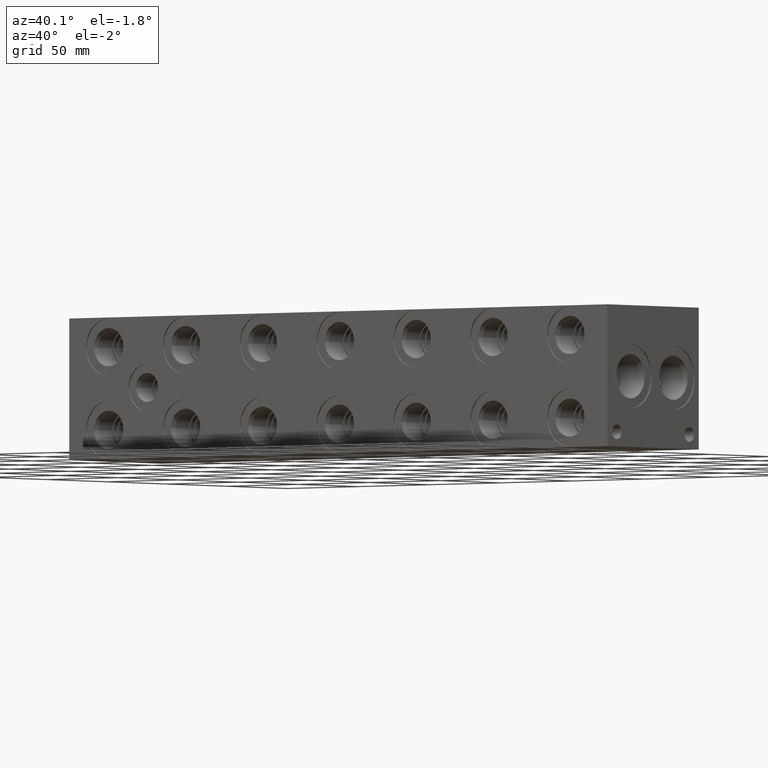
[diagram: clean part render]
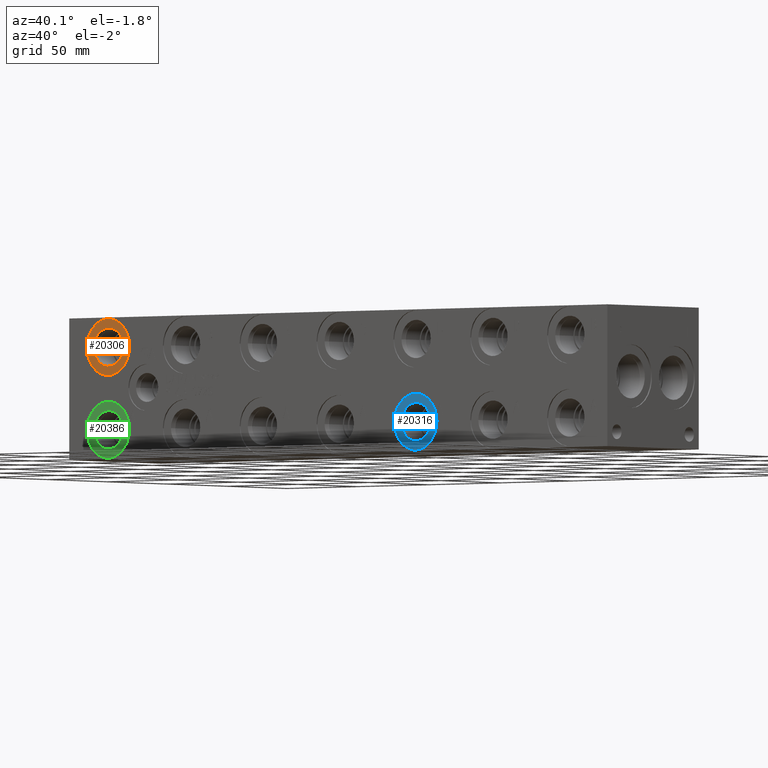
[diagram: same view with three faces highlighted in distinct colors, each labeled with its STEP entity id]
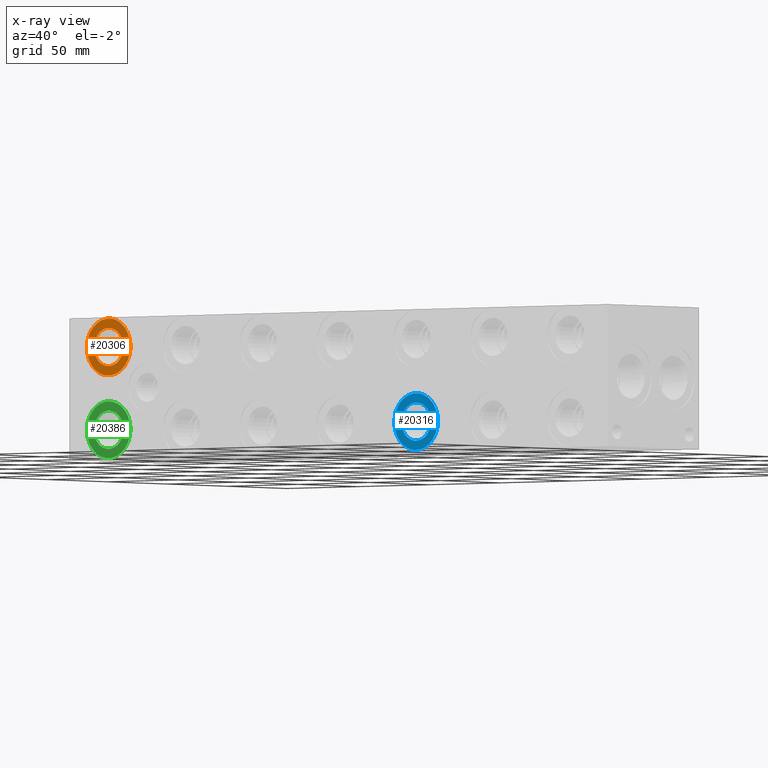
[diagram: x-ray of the same camera — body ghosted, the three highlighted faces saturated]
A machine part, auxiliary view with three faces highlighted in distinct colors.
The next image is the same camera in x-ray (body ghosted, the three faces saturated) — at least one of them is partly hidden behind the body in this view.
Their STEP definitions:

[orange] entity #20306 — the highlighted planar face has unit normal (0, 1, 0).
#510=CIRCLE('',#21338,15.3162);
#511=CIRCLE('',#21339,15.3162);
#512=CIRCLE('',#21341,10.2997);
#513=CIRCLE('',#21342,10.2997);
#1185=FACE_BOUND('',#3752,.T.);
#1764=PLANE('',#21340);
#2565=FACE_OUTER_BOUND('',#3751,.T.);
#3751=EDGE_LOOP('',(#16950,#16951));
#3752=EDGE_LOOP('',(#16952,#16953));
#9431=VERTEX_POINT('',#34147);
#9432=VERTEX_POINT('',#34149);
#9433=VERTEX_POINT('',#34153);
#9434=VERTEX_POINT('',#34154);
#12106=EDGE_CURVE('',#9431,#9432,#510,.T.);
#12107=EDGE_CURVE('',#9432,#9431,#511,.T.);
#12108=EDGE_CURVE('',#9433,#9434,#512,.T.);
#12109=EDGE_CURVE('',#9434,#9433,#513,.T.);
#16950=ORIENTED_EDGE('',*,*,#12107,.F.);
#16951=ORIENTED_EDGE('',*,*,#12106,.F.);
#16952=ORIENTED_EDGE('',*,*,#12108,.T.);
#16953=ORIENTED_EDGE('',*,*,#12109,.T.);
#20306=ADVANCED_FACE('',(#2565,#1185),#1764,.F.);
#21338=AXIS2_PLACEMENT_3D('',#34150,#25023,#25024);
#21339=AXIS2_PLACEMENT_3D('',#34151,#25025,#25026);
#21340=AXIS2_PLACEMENT_3D('',#34152,#25027,#25028);
#21341=AXIS2_PLACEMENT_3D('',#34155,#25029,#25030);
#21342=AXIS2_PLACEMENT_3D('',#34156,#25031,#25032);
#25023=DIRECTION('center_axis',(0.,1.,0.));
#25024=DIRECTION('ref_axis',(1.,0.,0.));
#25025=DIRECTION('center_axis',(0.,1.,0.));
#25026=DIRECTION('ref_axis',(1.,0.,0.));
#25027=DIRECTION('center_axis',(0.,1.,0.));
#25028=DIRECTION('ref_axis',(0.,0.,1.));
#25029=DIRECTION('center_axis',(0.,1.,0.));
#25030=DIRECTION('ref_axis',(1.,0.,0.));
#25031=DIRECTION('center_axis',(0.,1.,0.));
#25032=DIRECTION('ref_axis',(1.,0.,0.));
#34147=CARTESIAN_POINT('',(11.6586,0.7874,60.325));
#34149=CARTESIAN_POINT('',(42.291,0.7874,60.325));
#34150=CARTESIAN_POINT('Origin',(26.9748,0.7874,60.325));
#34151=CARTESIAN_POINT('Origin',(26.9748,0.7874,60.325));
#34152=CARTESIAN_POINT('Origin',(37.2745,0.7874,60.325));
#34153=CARTESIAN_POINT('',(37.2745,0.7874,60.325));
#34154=CARTESIAN_POINT('',(16.6751,0.787399999999999,60.325));
#34155=CARTESIAN_POINT('Origin',(26.9748,0.7874,60.325));
#34156=CARTESIAN_POINT('Origin',(26.9748,0.7874,60.325));

[blue] entity #20316 — the highlighted planar face has unit normal (0, 1, 0).
#528=CIRCLE('',#21366,15.3162);
#529=CIRCLE('',#21367,15.3162);
#530=CIRCLE('',#21369,10.2997);
#531=CIRCLE('',#21370,10.2997);
#1187=FACE_BOUND('',#3764,.T.);
#1766=PLANE('',#21368);
#2575=FACE_OUTER_BOUND('',#3763,.T.);
#3763=EDGE_LOOP('',(#17004,#17005));
#3764=EDGE_LOOP('',(#17006,#17007));
#9449=VERTEX_POINT('',#34201);
#9450=VERTEX_POINT('',#34203);
#9451=VERTEX_POINT('',#34207);
#9452=VERTEX_POINT('',#34208);
#12132=EDGE_CURVE('',#9449,#9450,#528,.T.);
#12133=EDGE_CURVE('',#9450,#9449,#529,.T.);
#12134=EDGE_CURVE('',#9451,#9452,#530,.T.);
#12135=EDGE_CURVE('',#9452,#9451,#531,.T.);
#17004=ORIENTED_EDGE('',*,*,#12133,.F.);
#17005=ORIENTED_EDGE('',*,*,#12132,.F.);
#17006=ORIENTED_EDGE('',*,*,#12134,.T.);
#17007=ORIENTED_EDGE('',*,*,#12135,.T.);
#20316=ADVANCED_FACE('',(#2575,#1187),#1766,.F.);
#21366=AXIS2_PLACEMENT_3D('',#34204,#25087,#25088);
#21367=AXIS2_PLACEMENT_3D('',#34205,#25089,#25090);
#21368=AXIS2_PLACEMENT_3D('',#34206,#25091,#25092);
#21369=AXIS2_PLACEMENT_3D('',#34209,#25093,#25094);
#21370=AXIS2_PLACEMENT_3D('',#34210,#25095,#25096);
#25087=DIRECTION('center_axis',(0.,1.,0.));
#25088=DIRECTION('ref_axis',(1.,0.,0.));
#25089=DIRECTION('center_axis',(0.,1.,0.));
#25090=DIRECTION('ref_axis',(1.,0.,0.));
#25091=DIRECTION('center_axis',(0.,1.,0.));
#25092=DIRECTION('ref_axis',(0.,0.,1.));
#25093=DIRECTION('center_axis',(0.,1.,0.));
#25094=DIRECTION('ref_axis',(1.,0.,0.));
#25095=DIRECTION('center_axis',(0.,1.,0.));
#25096=DIRECTION('ref_axis',(1.,0.,0.));
#34201=CARTESIAN_POINT('',(227.5586,0.7874,15.875));
#34203=CARTESIAN_POINT('',(258.191,0.7874,15.875));
#34204=CARTESIAN_POINT('Origin',(242.8748,0.7874,15.875));
#34205=CARTESIAN_POINT('Origin',(242.8748,0.7874,15.875));
#34206=CARTESIAN_POINT('Origin',(253.1745,0.7874,15.875));
#34207=CARTESIAN_POINT('',(253.1745,0.7874,15.875));
#34208=CARTESIAN_POINT('',(232.5751,0.7874,15.875));
#34209=CARTESIAN_POINT('Origin',(242.8748,0.7874,15.875));
#34210=CARTESIAN_POINT('Origin',(242.8748,0.7874,15.875));

[green] entity #20386 — the highlighted planar face has unit normal (0, 1, 0).
#627=CIRCLE('',#21535,15.3162);
#628=CIRCLE('',#21536,15.3162);
#629=CIRCLE('',#21538,10.2997);
#630=CIRCLE('',#21539,10.2997);
#1199=FACE_BOUND('',#3846,.T.);
#1778=PLANE('',#21537);
#2645=FACE_OUTER_BOUND('',#3845,.T.);
#3845=EDGE_LOOP('',(#17328,#17329));
#3846=EDGE_LOOP('',(#17330,#17331));
#9558=VERTEX_POINT('',#34537);
#9559=VERTEX_POINT('',#34539);
#9560=VERTEX_POINT('',#34543);
#9561=VERTEX_POINT('',#34544);
#12289=EDGE_CURVE('',#9558,#9559,#627,.T.);
#12290=EDGE_CURVE('',#9559,#9558,#628,.T.);
#12291=EDGE_CURVE('',#9560,#9561,#629,.T.);
#12292=EDGE_CURVE('',#9561,#9560,#630,.T.);
#17328=ORIENTED_EDGE('',*,*,#12290,.F.);
#17329=ORIENTED_EDGE('',*,*,#12289,.F.);
#17330=ORIENTED_EDGE('',*,*,#12291,.T.);
#17331=ORIENTED_EDGE('',*,*,#12292,.T.);
#20386=ADVANCED_FACE('',(#2645,#1199),#1778,.F.);
#21535=AXIS2_PLACEMENT_3D('',#34540,#25483,#25484);
#21536=AXIS2_PLACEMENT_3D('',#34541,#25485,#25486);
#21537=AXIS2_PLACEMENT_3D('',#34542,#25487,#25488);
#21538=AXIS2_PLACEMENT_3D('',#34545,#25489,#25490);
#21539=AXIS2_PLACEMENT_3D('',#34546,#25491,#25492);
#25483=DIRECTION('center_axis',(0.,1.,0.));
#25484=DIRECTION('ref_axis',(1.,0.,0.));
#25485=DIRECTION('center_axis',(0.,1.,0.));
#25486=DIRECTION('ref_axis',(1.,0.,0.));
#25487=DIRECTION('center_axis',(0.,1.,0.));
#25488=DIRECTION('ref_axis',(0.,0.,1.));
#25489=DIRECTION('center_axis',(0.,1.,0.));
#25490=DIRECTION('ref_axis',(1.,0.,0.));
#25491=DIRECTION('center_axis',(0.,1.,0.));
#25492=DIRECTION('ref_axis',(1.,0.,0.));
#34537=CARTESIAN_POINT('',(11.6586,0.7874,15.875));
#34539=CARTESIAN_POINT('',(42.291,0.7874,15.875));
#34540=CARTESIAN_POINT('Origin',(26.9748,0.7874,15.875));
#34541=CARTESIAN_POINT('Origin',(26.9748,0.7874,15.875));
#34542=CARTESIAN_POINT('Origin',(37.2745,0.7874,15.875));
#34543=CARTESIAN_POINT('',(37.2745,0.7874,15.875));
#34544=CARTESIAN_POINT('',(16.6751,0.7874,15.875));
#34545=CARTESIAN_POINT('Origin',(26.9748,0.7874,15.875));
#34546=CARTESIAN_POINT('Origin',(26.9748,0.7874,15.875));